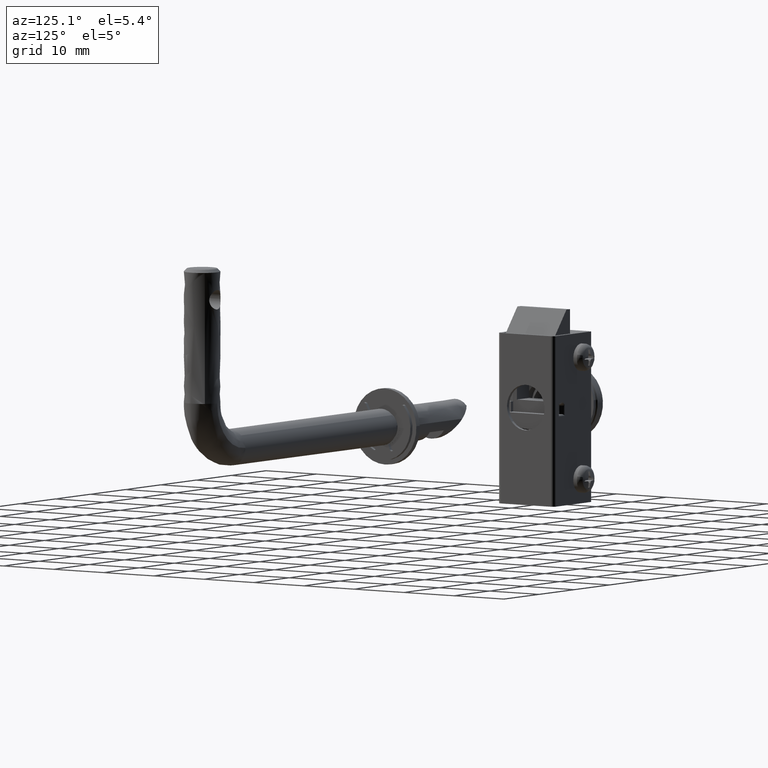
[diagram: clean part render]
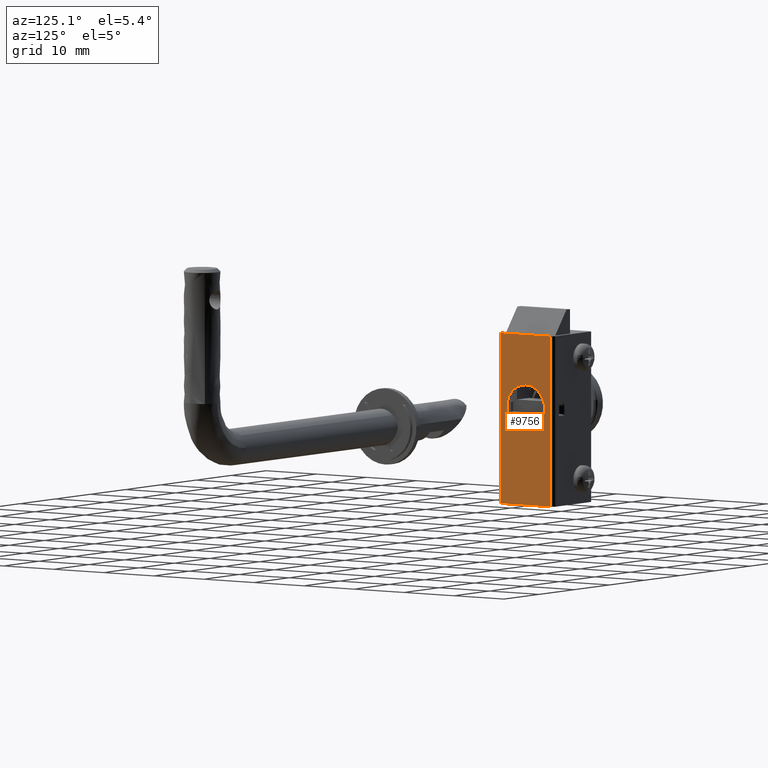
[diagram: same view with one face highlighted and labeled with its STEP entity id]
A machine part, auxiliary view. The second image highlights one B-rep face of the part: STEP entity #9756.
In plain terms, the highlighted face is a freeform B-spline surface patch.
Its self-contained STEP definition (entity closure, byte-faithful):
#7042=CARTESIAN_POINT('',(1.021717E-012,2.435428923366024,13.148476554676520));
#7043=VERTEX_POINT('',#7042);
#7049=CARTESIAN_POINT('',(0.0,0.0,19.750000000000000));
#7050=VERTEX_POINT('',#7049);
#7051=CARTESIAN_POINT('',(1.021717E-012,2.435428923366024,13.148476554676526));
#7052=CARTESIAN_POINT('',(0.0,3.750000000000000,14.271225318010025));
#7053=CARTESIAN_POINT('',(0.0,3.750000000000000,16.0));
#7054=CARTESIAN_POINT('',(0.0,3.750000000000000,19.749999999999996));
#7055=CARTESIAN_POINT('',(0.0,0.0,19.750000000000000));
#7063=(BOUNDED_CURVE()B_SPLINE_CURVE(2,(#7051,#7052,#7053,#7054,#7055),.UNSPECIFIED.,.F.,.U.)B_SPLINE_CURVE_WITH_KNOTS((3,2,3),(0.613143094686325,0.750000000000000,1.0),.UNSPECIFIED.)CURVE()GEOMETRIC_REPRESENTATION_ITEM()RATIONAL_B_SPLINE_CURVE((0.854871046455619,0.839662161943319,1.0,0.707106781186547,1.0))REPRESENTATION_ITEM(''));
#7064=EDGE_CURVE('',#7043,#7050,#7063,.T.);
#7066=CARTESIAN_POINT('',(-1.387779E-017,-2.851523681720919,13.564571353420369));
#7067=VERTEX_POINT('',#7066);
#7068=CARTESIAN_POINT('',(0.0,0.0,19.750000000000000));
#7069=CARTESIAN_POINT('',(0.0,-3.750000000000000,19.749999999999996));
#7070=CARTESIAN_POINT('',(0.0,-3.750000000000000,16.0));
#7071=CARTESIAN_POINT('',(0.0,-3.749999999999999,14.616553107283019));
#7072=CARTESIAN_POINT('',(-1.387779E-017,-2.851523681720920,13.564571353420368));
#7080=(BOUNDED_CURVE()B_SPLINE_CURVE(2,(#7068,#7069,#7070,#7071,#7072),.UNSPECIFIED.,.F.,.U.)B_SPLINE_CURVE_WITH_KNOTS((3,2,3),(0.0,0.250000000000000,0.363143080017571),.UNSPECIFIED.)CURVE()GEOMETRIC_REPRESENTATION_ITEM()RATIONAL_B_SPLINE_CURVE((1.0,0.707106781186547,1.0,0.867444636428742,0.854871049715893))REPRESENTATION_ITEM(''));
#7081=EDGE_CURVE('',#7050,#7067,#7080,.T.);
#7121=CARTESIAN_POINT('',(0.0,0.0,12.250000000000000));
#7122=VERTEX_POINT('',#7121);
#7123=CARTESIAN_POINT('',(-1.387779E-017,-2.851523681720920,13.564571353420368));
#7124=CARTESIAN_POINT('',(0.0,-1.728774902668620,12.250000000000004));
#7125=CARTESIAN_POINT('',(0.0,0.0,12.250000000000000));
#7133=(BOUNDED_CURVE()B_SPLINE_CURVE(2,(#7123,#7124,#7125),.UNSPECIFIED.,.F.,.U.)B_SPLINE_CURVE_WITH_KNOTS((3,3),(0.363143080017571,0.500000000000000),.UNSPECIFIED.)CURVE()GEOMETRIC_REPRESENTATION_ITEM()RATIONAL_B_SPLINE_CURVE((0.854871049715893,0.839662144757805,1.0))REPRESENTATION_ITEM(''));
#7134=EDGE_CURVE('',#7067,#7122,#7133,.T.);
#7136=CARTESIAN_POINT('',(0.0,0.0,12.250000000000000));
#7137=CARTESIAN_POINT('',(0.0,1.383447099486228,12.250000000000005));
#7138=CARTESIAN_POINT('',(1.021717E-012,2.435428923366024,13.148476554676526));
#7146=(BOUNDED_CURVE()B_SPLINE_CURVE(2,(#7136,#7137,#7138),.UNSPECIFIED.,.F.,.U.)B_SPLINE_CURVE_WITH_KNOTS((3,3),(0.500000000000000,0.613143094686325),.UNSPECIFIED.)CURVE()GEOMETRIC_REPRESENTATION_ITEM()RATIONAL_B_SPLINE_CURVE((1.0,0.867444619243228,0.854871046455619))REPRESENTATION_ITEM(''));
#7147=EDGE_CURVE('',#7122,#7043,#7146,.T.);
#9273=CARTESIAN_POINT('',(9.184559E-016,-5.000006000000091,0.0));
#9274=VERTEX_POINT('',#9273);
#9290=CARTESIAN_POINT('',(9.184559E-016,-5.000006000000091,28.0));
#9291=VERTEX_POINT('',#9290);
#9292=CARTESIAN_POINT('',(9.184559E-016,-5.000006000000091,28.0));
#9293=CARTESIAN_POINT('',(9.184559E-016,-5.000006000000091,0.0));
#9294=QUASI_UNIFORM_CURVE('',1,(#9292,#9293),.UNSPECIFIED.,.F.,.U.);
#9295=EDGE_CURVE('',#9291,#9274,#9294,.T.);
#9336=CARTESIAN_POINT('',(-9.184529E-016,4.999990000000000,0.0));
#9337=VERTEX_POINT('',#9336);
#9358=CARTESIAN_POINT('',(-9.184529E-016,4.999990000000000,28.0));
#9359=VERTEX_POINT('',#9358);
#9373=CARTESIAN_POINT('',(-9.184529E-016,4.999990000000000,0.0));
#9374=CARTESIAN_POINT('',(-9.184529E-016,4.999990000000000,28.0));
#9375=QUASI_UNIFORM_CURVE('',1,(#9373,#9374),.UNSPECIFIED.,.F.,.U.);
#9376=EDGE_CURVE('',#9337,#9359,#9375,.T.);
#9478=CARTESIAN_POINT('',(9.184559E-016,-5.000006000000091,28.0));
#9479=CARTESIAN_POINT('',(-9.184529E-016,4.999990000000000,28.0));
#9480=QUASI_UNIFORM_CURVE('',1,(#9478,#9479),.UNSPECIFIED.,.F.,.U.);
#9481=EDGE_CURVE('',#9291,#9359,#9480,.T.);
#9702=CARTESIAN_POINT('',(9.184559E-016,-5.000006000000091,0.0));
#9703=CARTESIAN_POINT('',(-9.184529E-016,4.999990000000000,0.0));
#9704=QUASI_UNIFORM_CURVE('',1,(#9702,#9703),.UNSPECIFIED.,.F.,.U.);
#9705=EDGE_CURVE('',#9274,#9337,#9704,.T.);
#9739=CARTESIAN_POINT('',(1.028670E-015,-5.499506062436586,-1.398599945730568));
#9740=CARTESIAN_POINT('',(1.028670E-015,5.499490062436494,-1.398599945730568));
#9741=CARTESIAN_POINT('',(1.028670E-015,-5.499506062436586,29.398600696749099));
#9742=CARTESIAN_POINT('',(1.028670E-015,5.499490062436494,29.398600696749099));
#9743=B_SPLINE_SURFACE_WITH_KNOTS('',1,1,((#9739,#9741),(#9740,#9742)),.UNSPECIFIED.,.F.,.F.,.U.,(2,2),(2,2),(0.0,10.998996124873081),(0.0,30.797200642479659),.UNSPECIFIED.);
#9744=ORIENTED_EDGE('',*,*,#9705,.T.);
#9745=ORIENTED_EDGE('',*,*,#9376,.T.);
#9746=ORIENTED_EDGE('',*,*,#9481,.F.);
#9747=ORIENTED_EDGE('',*,*,#9295,.T.);
#9748=EDGE_LOOP('',(#9744,#9745,#9746,#9747));
#9749=FACE_OUTER_BOUND('',#9748,.T.);
#9750=ORIENTED_EDGE('',*,*,#7147,.F.);
#9751=ORIENTED_EDGE('',*,*,#7134,.F.);
#9752=ORIENTED_EDGE('',*,*,#7081,.F.);
#9753=ORIENTED_EDGE('',*,*,#7064,.F.);
#9754=EDGE_LOOP('',(#9750,#9751,#9752,#9753));
#9755=FACE_BOUND('',#9754,.T.);
#9756=ADVANCED_FACE('',(#9749,#9755),#9743,.T.);